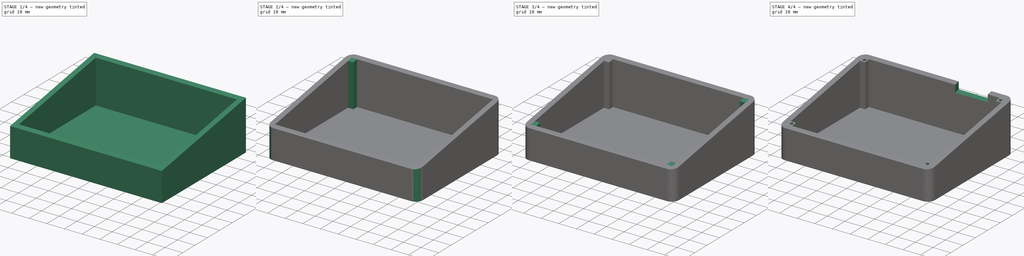
[diagram: build sequence overview — one tinted view per stage of 4, left to right]
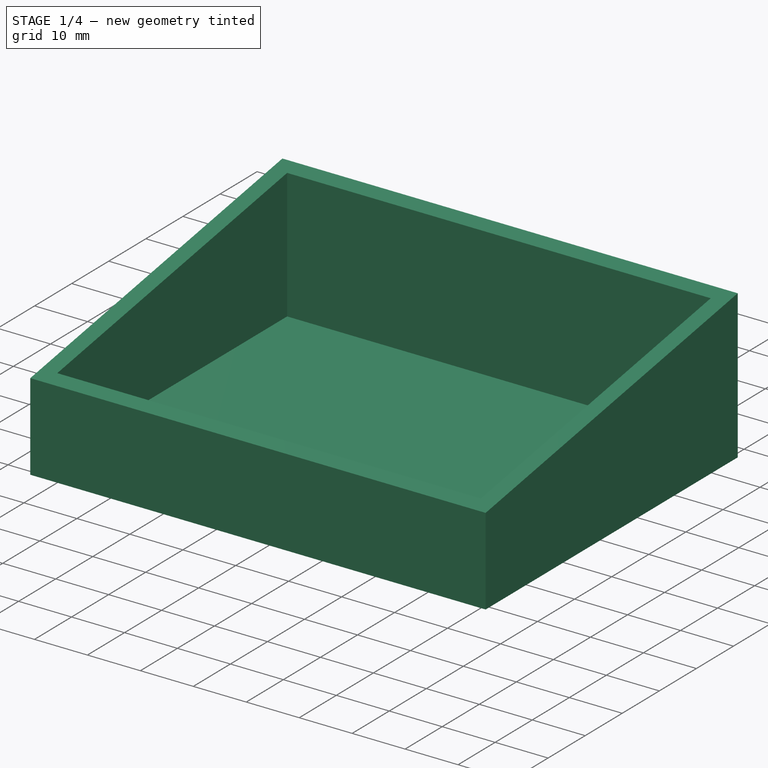
[diagram: stage 1 of 4 — iso view after this stage's code; geometry added in this stage tinted green]
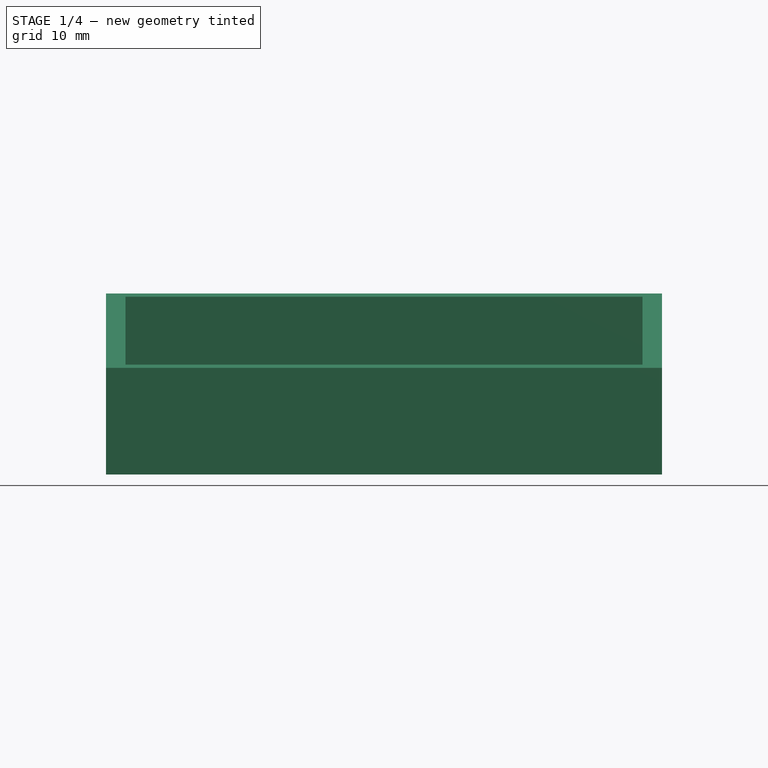
[diagram: stage 1 of 4 — front view after this stage's code; geometry added in this stage tinted green]
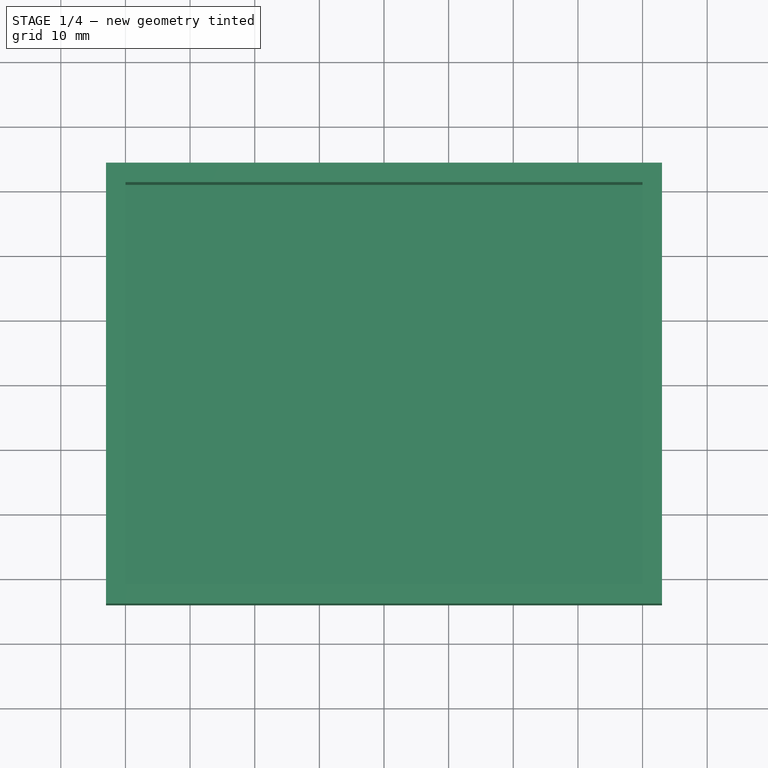
[diagram: stage 1 of 4 — top view after this stage's code; geometry added in this stage tinted green]
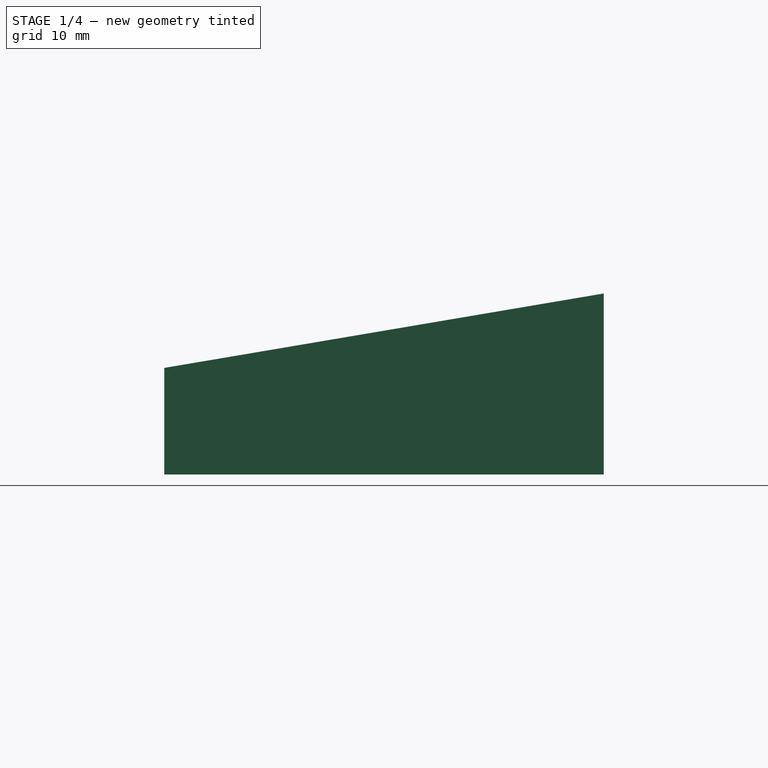
[diagram: stage 1 of 4 — right view after this stage's code; geometry added in this stage tinted green]
FCSTD DOCUMENT  (FreeCAD 0.19R)
Label: makro-buddy-1.0
License: All rights reserved
LicenseURL: http://en.wikipedia.org/wiki/All_rights_reserved
objects: Sketcher::SketchObject×8, PartDesign::Pad×5, PartDesign::Pocket×2, PartDesign::Thickness×1, PartDesign::Fillet×1, PartDesign::Hole×1, PartDesign::Body×1
note: 29 computed .brp shape members not serialized (recipe doc carries the construction recipe); baked Part::Feature solids carry a one-line shape summary decoded from their .brp

FEATURE [Sketcher::SketchObject] Sketch  label="base"
  FullyConstrained = true
  MapMode = 5
  Placement = pos=(0,0,0) rot=(0.57735,0.57735,0.57735;2.0944rad)
  Support = -> [YZ_Plane]
  sketch-geometry (4):
    g0: LineSegment StartX=-31 StartY=-7 StartZ=0 EndX=-31 EndY=7 EndZ=0
    g1: LineSegment StartX=-31 StartY=7 StartZ=0 EndX=31 EndY=17.5 EndZ=0
    g2: LineSegment StartX=31 StartY=17.5 StartZ=0 EndX=31 EndY=-7 EndZ=0
    g3: LineSegment StartX=31 StartY=-7 StartZ=0 EndX=-31 EndY=-7 EndZ=0
  constraints (11):
    c: Coincident(g0,g1)
    c: Coincident(g1,g2)
    c: Vertical(g2)
    c: Coincident(g2,g3)
    c: Coincident(g3,g0)
    c: Horizontal(g3)
    c: DistanceY(g0,g0) = 14
    c: Vertical(g0)
    c: DistanceY(g2,g2) = 24.5
    c: DistanceX(g3,g3) = 62
    c: Symmetric(g0,g2,g-1)
FEATURE [PartDesign::Pad] Pad
  Direction = (1,1,1)
  Length = 80
  Length2 = 100
  Placement = pos=(0,0,0) rot=(0.57735,0.57735,0.57735;2.0944rad)
  Profile = -> Sketch
  Type = 0
FEATURE [PartDesign::Thickness] Thickness
  Base = -> Pad [Face2]
  BaseFeature = -> Pad
  Intersection = false
  Join = 1
  Mode = 0
  SupportTransform = false
  Value = 3
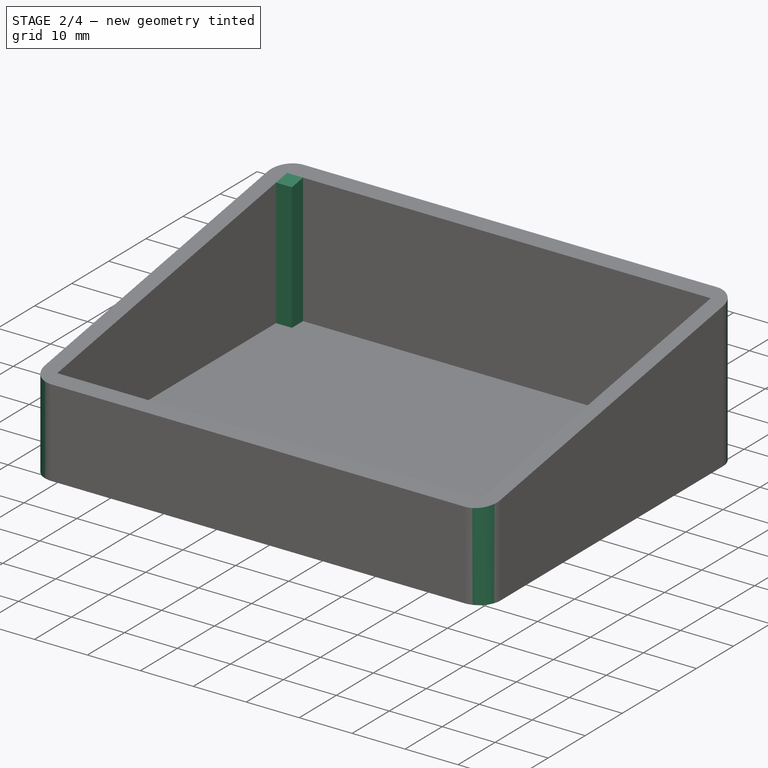
[diagram: stage 2 of 4 — iso view after this stage's code; geometry added in this stage tinted green]
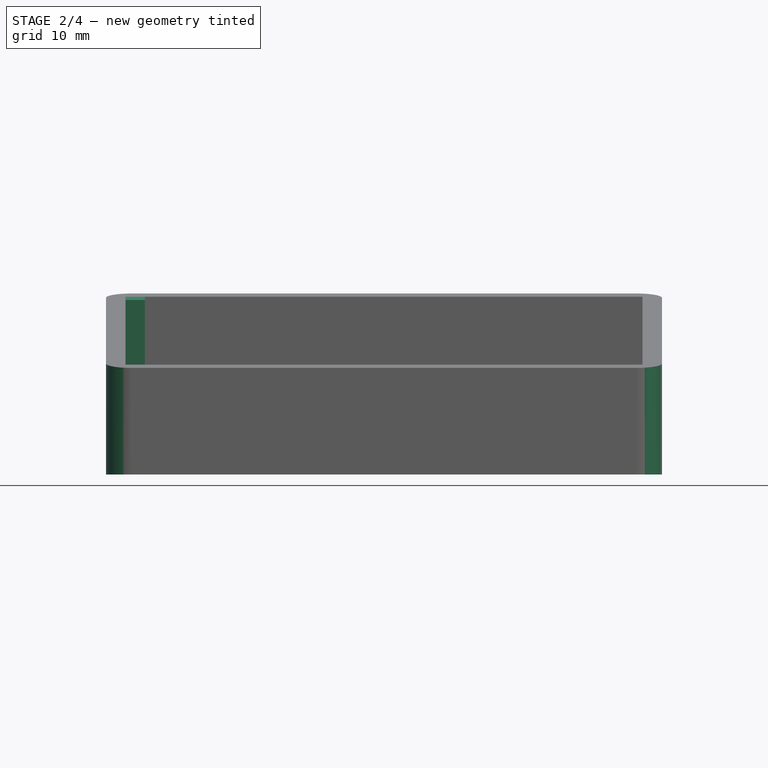
[diagram: stage 2 of 4 — front view after this stage's code; geometry added in this stage tinted green]
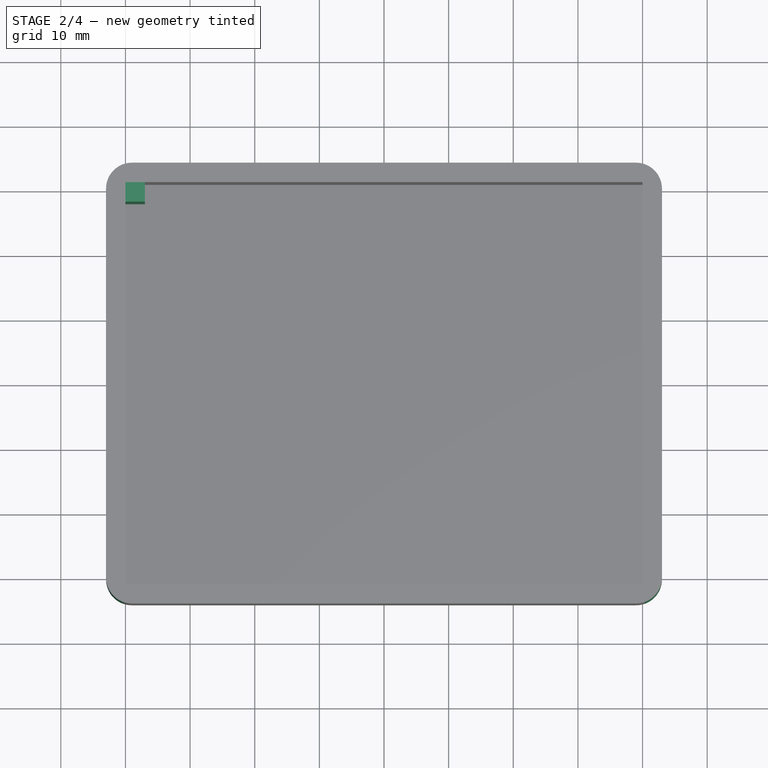
[diagram: stage 2 of 4 — top view after this stage's code; geometry added in this stage tinted green]
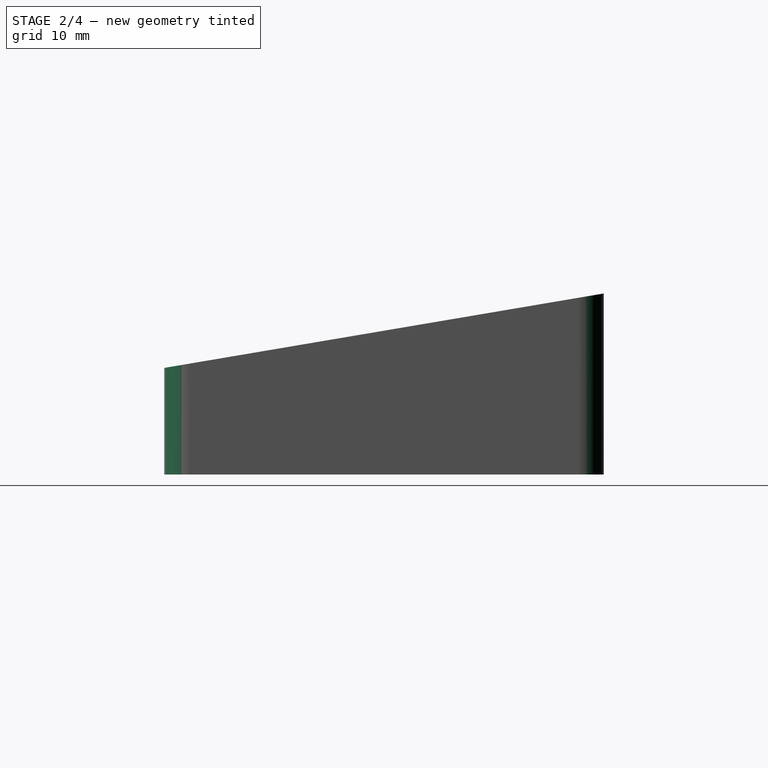
[diagram: stage 2 of 4 — right view after this stage's code; geometry added in this stage tinted green]
FEATURE [PartDesign::Fillet] Fillet
  Base = -> Thickness [Edge22,Edge18,Edge19,Edge21]
  BaseFeature = -> Thickness
  Radius = 4
  SupportTransform = false
FEATURE [Sketcher::SketchObject] Sketch001  label="feet"
  ExternalGeometry = -> [Fillet]
  FullyConstrained = true
  MapMode = 5
  Placement = pos=(2.8e-15,-4.4e-15,-10) rot=(1,0,0;3.14159rad)
  Support = -> [Fillet]
  sketch-geometry (4):
    g0: Circle CenterX=14 CenterY=-20 CenterZ=0 NormalX=0 NormalY=0 NormalZ=1 AngleXU=0 Radius=7.6
    g1: Circle CenterX=14 CenterY=20 CenterZ=0 NormalX=0 NormalY=0 NormalZ=1 AngleXU=0 Radius=7.6
    g2: Circle CenterX=66 CenterY=20 CenterZ=0 NormalX=0 NormalY=0 NormalZ=1 AngleXU=0 Radius=7.6
    g3: Circle CenterX=66 CenterY=-20 CenterZ=0 NormalX=0 NormalY=0 NormalZ=1 AngleXU=0 Radius=7.6
  constraints (10):
    c: Diameter(g0) = 15.2
    c: Diameter(g1) = 15.2
    c: Symmetric(g0,g1,g-1)
    c: DistanceY(g0,g-1) = 20
    c: Diameter(g2) = 15.2
    c: Diameter(g3) = 15.2
    c: Symmetric(g2,g3,g-1)
    c: DistanceY(g3,g-1) = 20
    c: DistanceX(g2,g-3) = 17
    c: DistanceX(g-4,g1) = 17
FEATURE [PartDesign::Pocket] Pocket
  BaseFeature = -> Fillet
  Length = 1
  Length2 = 100
  Profile = -> Sketch001
  Type = 0
FEATURE [Sketcher::SketchObject] Sketch002
  ExternalGeometry = -> [Pocket]
  FullyConstrained = true
  MapMode = 5
  Placement = pos=(0,0,0) rot=(0.57735,0.57735,0.57735;2.0944rad)
  Support = -> [Pocket]
  sketch-geometry (4):
    g0: LineSegment StartX=28 StartY=-7 StartZ=0 EndX=31 EndY=-7 EndZ=0
    g1: LineSegment StartX=31 StartY=-7 StartZ=0 EndX=31 EndY=17.5 EndZ=0
    g2: LineSegment StartX=31 StartY=17.5 StartZ=0 EndX=28 EndY=16.9919 EndZ=0
    g3: LineSegment StartX=28 StartY=16.9919 StartZ=0 EndX=28 EndY=-7 EndZ=0
  constraints (11):
    c: Horizontal(g0)
    c: Coincident(g0,g1)
    c: Coincident(g1,g2)
    c: Coincident(g2,g3)
    c: Coincident(g3,g0)
    c: Vertical(g3)
    c: Vertical(g1)
    c: Coincident(g1,g-3)
    c: DistanceX(g0,g0) = 3
    c: DistanceY(g-4,g0) = 0
    c: Parallel(g2,g-3)
FEATURE [PartDesign::Pad] Pad001
  BaseFeature = -> Pocket
  Direction = (1,1,1)
  Length = 3
  Length2 = 100
  Profile = -> Sketch002
  Type = 0
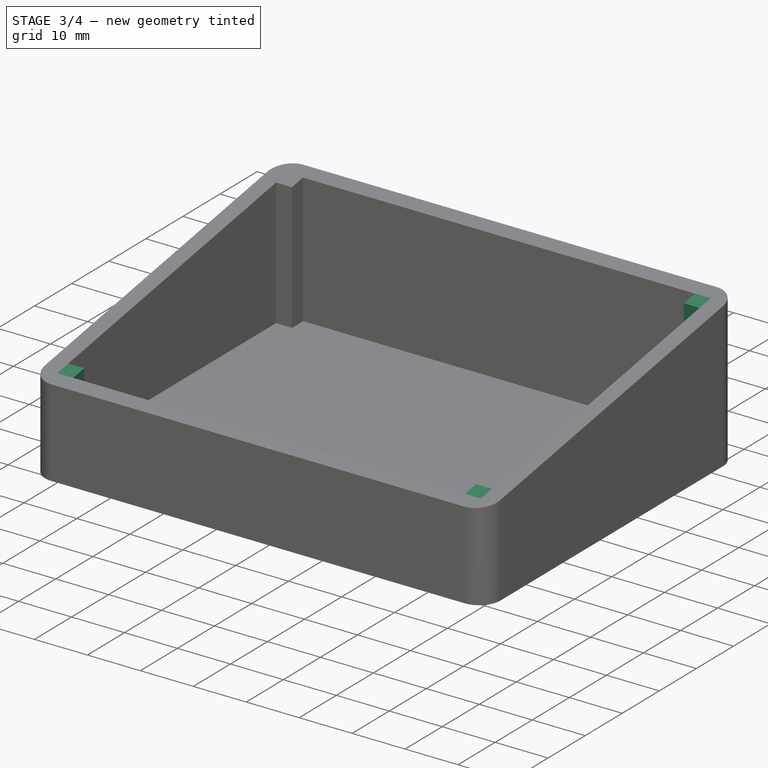
[diagram: stage 3 of 4 — iso view after this stage's code; geometry added in this stage tinted green]
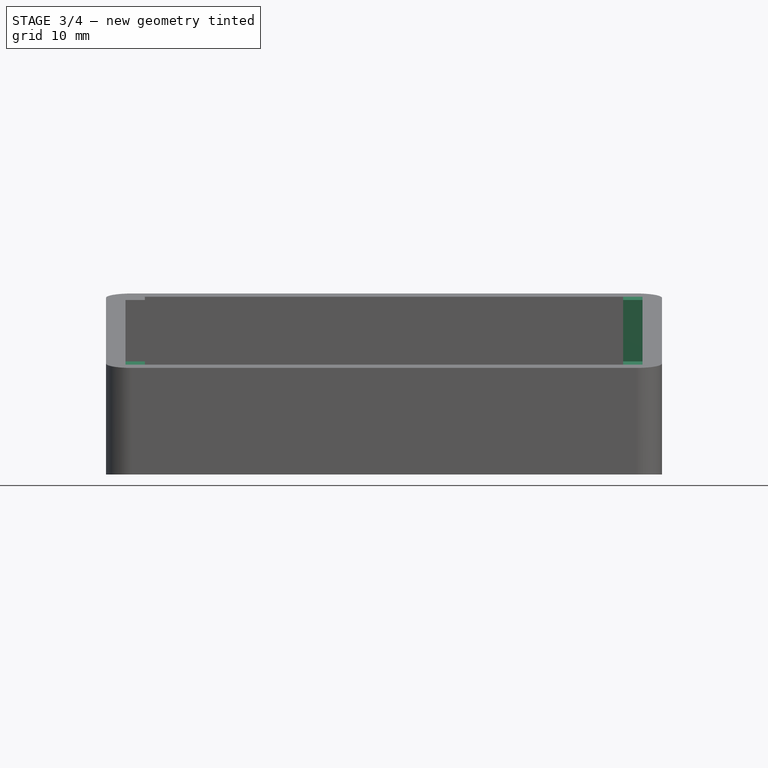
[diagram: stage 3 of 4 — front view after this stage's code; geometry added in this stage tinted green]
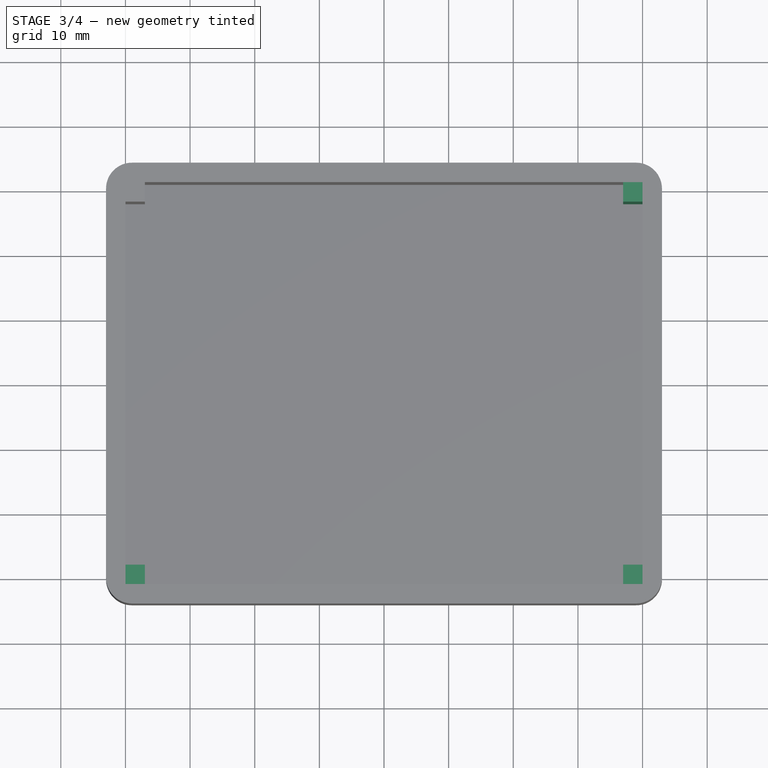
[diagram: stage 3 of 4 — top view after this stage's code; geometry added in this stage tinted green]
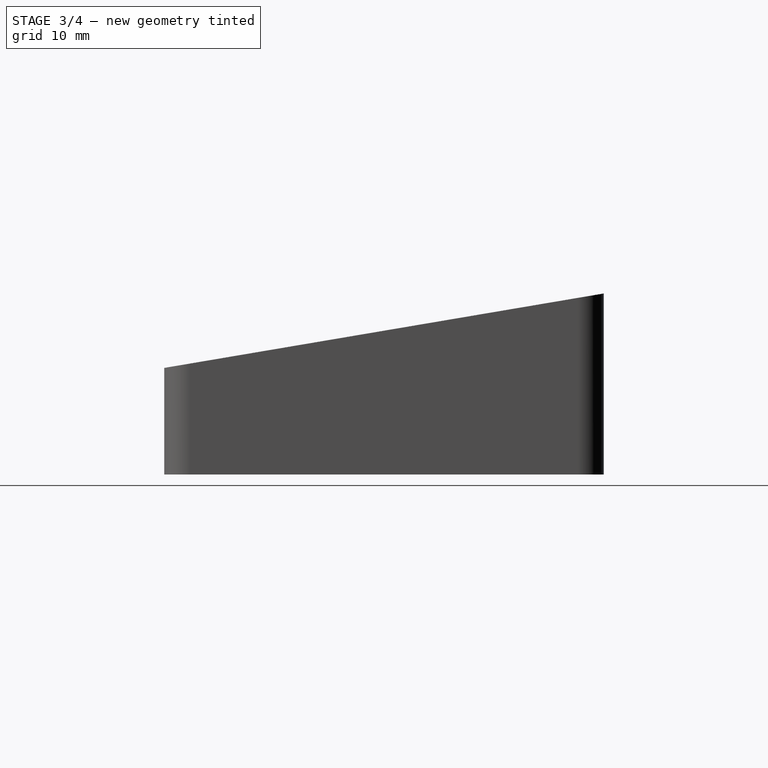
[diagram: stage 3 of 4 — right view after this stage's code; geometry added in this stage tinted green]
FEATURE [Sketcher::SketchObject] Sketch003
  ExternalGeometry = -> [Pad001]
  FullyConstrained = true
  MapMode = 5
  Placement = pos=(80,-1.76e-14,1.76e-14) rot=(-0.57735,0.57735,0.57735;4.18879rad)
  Support = -> [Pad001]
  sketch-geometry (4):
    g0: LineSegment StartX=-31 StartY=-7 StartZ=0 EndX=-31 EndY=17.5 EndZ=0
    g1: LineSegment StartX=-31 StartY=17.5 StartZ=0 EndX=-28 EndY=16.9919 EndZ=0
    g2: LineSegment StartX=-28 StartY=16.9919 StartZ=0 EndX=-28 EndY=-7 EndZ=0
    g3: LineSegment StartX=-28 StartY=-7 StartZ=0 EndX=-31 EndY=-7 EndZ=0
  constraints (11):
    c: Vertical(g0)
    c: Coincident(g0,g1)
    c: Coincident(g1,g2)
    c: Vertical(g2)
    c: Coincident(g2,g3)
    c: Coincident(g3,g0)
    c: DistanceX(g3,g3) = 3
    c: Coincident(g0,g-3)
    c: DistanceY(g-4,g2) = 0
    c: Horizontal(g3)
    c: Parallel(g1,g-3)
FEATURE [PartDesign::Pad] Pad002
  BaseFeature = -> Pad001
  Direction = (1,1,1)
  Length = 3
  Length2 = 100
  Profile = -> Sketch003
  Type = 0
FEATURE [Sketcher::SketchObject] Sketch004
  ExternalGeometry = -> [Pad002]
  FullyConstrained = true
  MapMode = 5
  Placement = pos=(80,-1.76e-14,1.76e-14) rot=(-0.57735,0.57735,0.57735;4.18879rad)
  Support = -> [Pad002]
  sketch-geometry (4):
    g0: LineSegment StartX=28 StartY=-7 StartZ=0 EndX=28 EndY=7.50806 EndZ=0
    g1: LineSegment StartX=28 StartY=7.50806 StartZ=0 EndX=31 EndY=7 EndZ=0
    g2: LineSegment StartX=31 StartY=7 StartZ=0 EndX=31 EndY=-7 EndZ=0
    g3: LineSegment StartX=31 StartY=-7 StartZ=0 EndX=28 EndY=-7 EndZ=0
  constraints (11):
    c: Coincident(g0,g1)
    c: Coincident(g1,g2)
    c: Coincident(g2,g3)
    c: Coincident(g3,g0)
    c: Coincident(g1,g-3)
    c: Horizontal(g3)
    c: DistanceY(g-4,g2) = 0
    c: DistanceX(g2,g-4) = 0
    c: Parallel(g1,g-3)
    c: DistanceX(g3,g3) = 3
    c: Vertical(g0)
FEATURE [PartDesign::Pad] Pad003
  BaseFeature = -> Pad002
  Direction = (1,1,1)
  Length = 3
  Length2 = 100
  Profile = -> Sketch004
  Type = 0
FEATURE [Sketcher::SketchObject] Sketch005
  ExternalGeometry = -> [Pad003]
  FullyConstrained = true
  MapMode = 5
  Placement = pos=(0,0,0) rot=(0.57735,0.57735,0.57735;2.0944rad)
  Support = -> [Pad003]
  sketch-geometry (4):
    g0: LineSegment StartX=-31 StartY=-7 StartZ=0 EndX=-31 EndY=7 EndZ=0
    g1: LineSegment StartX=-31 StartY=7 StartZ=0 EndX=-28 EndY=7.50806 EndZ=0
    g2: LineSegment StartX=-28 StartY=7.50806 StartZ=0 EndX=-28 EndY=-7 EndZ=0
    g3: LineSegment StartX=-28 StartY=-7 StartZ=0 EndX=-31 EndY=-7 EndZ=0
  constraints (11):
    c: Coincident(g0,g1)
    c: Coincident(g1,g2)
    c: Coincident(g2,g3)
    c: Coincident(g3,g0)
    c: Horizontal(g3)
    c: Vertical(g2)
    c: Vertical(g0)
    c: Coincident(g0,g-3)
    c: DistanceY(g-4,g0) = 0
    c: Parallel(g1,g-3)
    c: DistanceX(g3,g3) = 3
FEATURE [PartDesign::Pad] Pad004
  BaseFeature = -> Pad003
  Direction = (1,1,1)
  Length = 3
  Length2 = 100
  Profile = -> Sketch005
  Type = 0
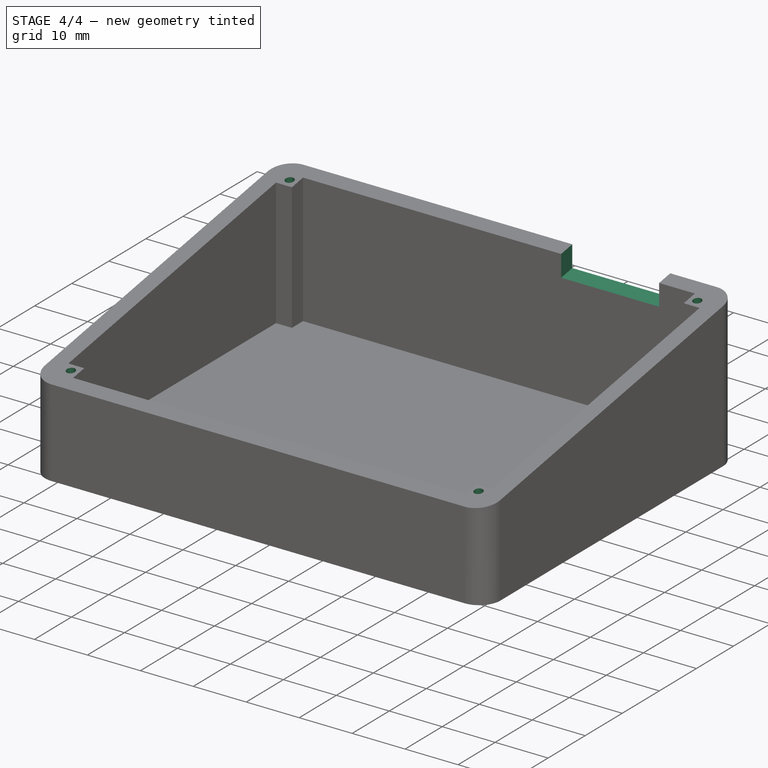
[diagram: stage 4 of 4 — iso view after this stage's code; geometry added in this stage tinted green]
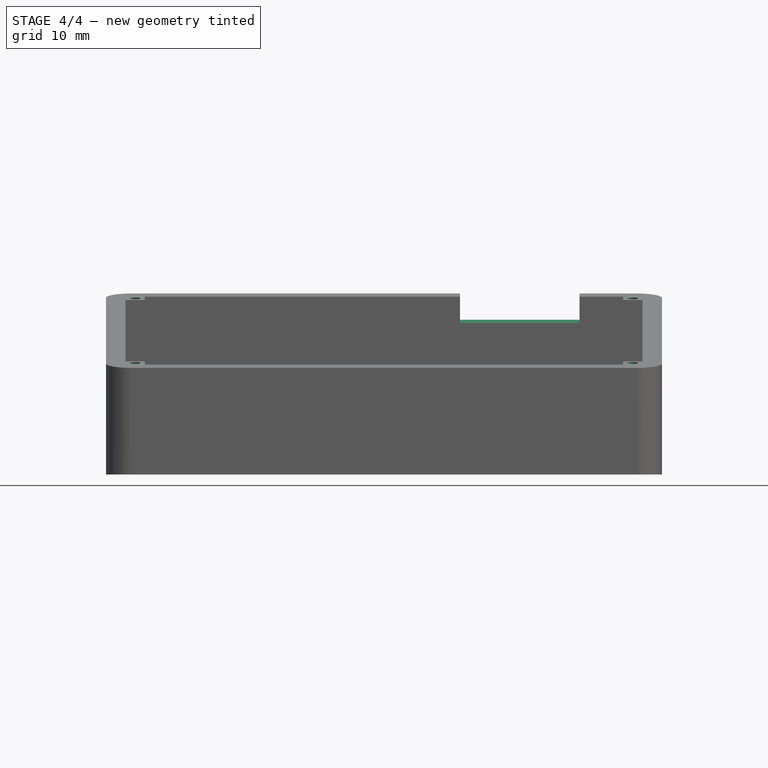
[diagram: stage 4 of 4 — front view after this stage's code; geometry added in this stage tinted green]
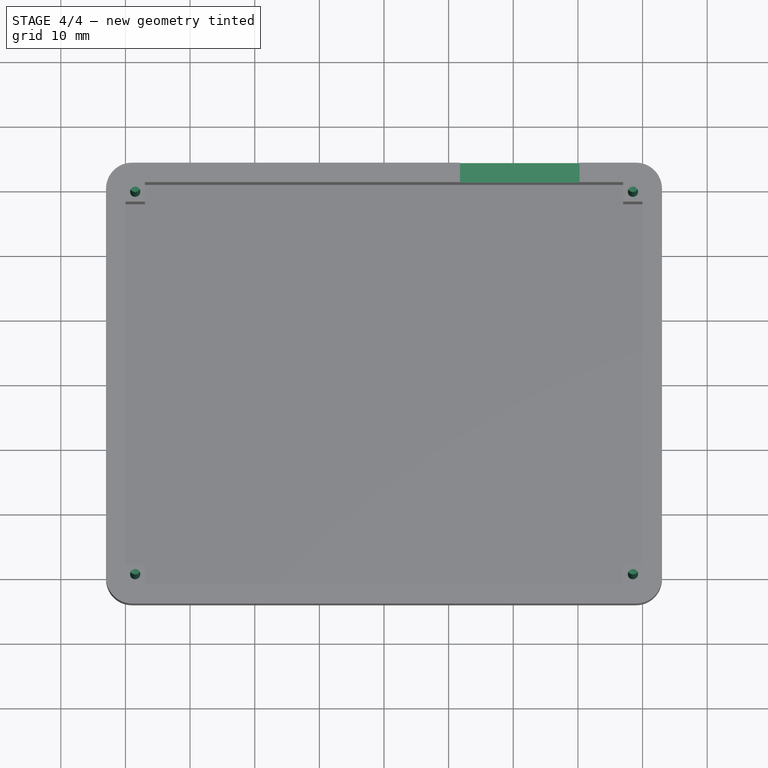
[diagram: stage 4 of 4 — top view after this stage's code; geometry added in this stage tinted green]
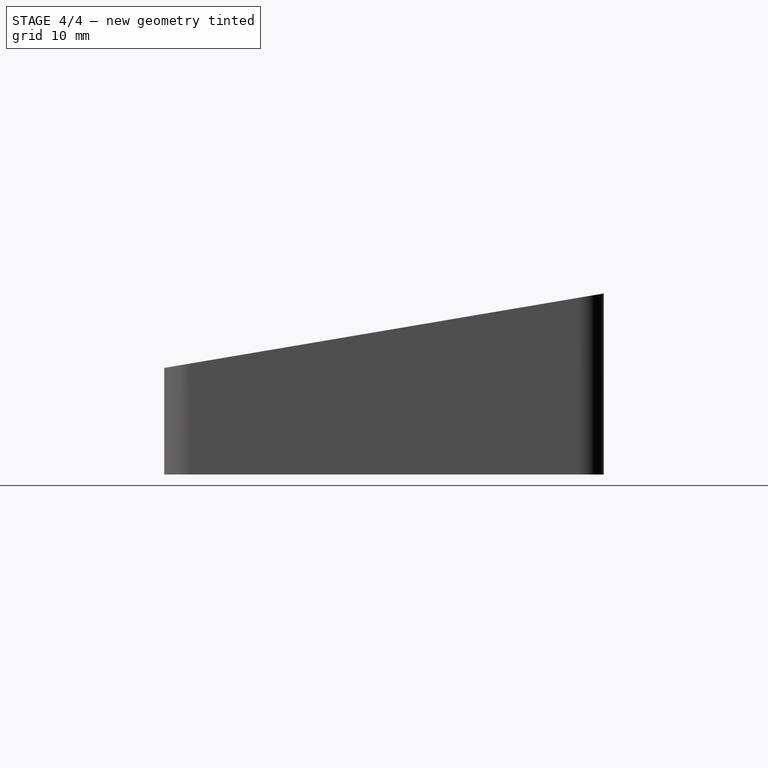
[diagram: stage 4 of 4 — right view after this stage's code; geometry added in this stage tinted green]
FEATURE [Sketcher::SketchObject] Sketch006
  ExternalGeometry = -> [Pad004]
  FullyConstrained = true
  MapMode = 5
  Placement = pos=(-3.1e-15,-2.01675,11.9085) rot=(1,0,0;0.167763rad)
  Support = -> [Pad004]
  sketch-geometry (4):
    g0: Circle CenterX=1.5 CenterY=31.9869 CenterZ=0 NormalX=0 NormalY=0 NormalZ=1 AngleXU=0 Radius=1
    g1: Circle CenterX=78.5 CenterY=31.9869 CenterZ=0 NormalX=0 NormalY=0 NormalZ=1 AngleXU=0 Radius=1
    g2: Circle CenterX=78.5 CenterY=-27.8532 CenterZ=0 NormalX=0 NormalY=0 NormalZ=1 AngleXU=0 Radius=1
    g3: Circle CenterX=1.5 CenterY=-27.8532 CenterZ=0 NormalX=0 NormalY=0 NormalZ=1 AngleXU=0 Radius=1
  constraints (12):
    c: Diameter(g0) = 2
    c: DistanceY(g0,g-4) = 1.5
    c: DistanceX(g-4,g0) = 1.5
    c: Diameter(g1) = 2
    c: DistanceX(g1,g-5) = 1.5
    c: DistanceY(g1,g-5) = 1.5
    c: Diameter(g2) = 2
    c: DistanceX(g-6,g2) = 1.5
    c: DistanceY(g2,g-6) = 1.5
    c: Diameter(g3) = 2
    c: DistanceY(g3,g-7) = 1.5
    c: DistanceX(g-7,g3) = 1.5
FEATURE [PartDesign::Hole] Hole
  BaseFeature = -> Pad004
  Depth = 5
  DepthType = 0
  Diameter = 1.6
  DrillForDepth = false
  DrillPoint = 1
  DrillPointAngle = 118
  HoleCutCountersinkAngle = 90
  HoleCutCustomValues = false
  HoleCutDepth = 0
  HoleCutDiameter = 6.1
  HoleCutType = 0
  ModelActualThread = false
  Profile = -> Sketch006
  Tapered = false
  TaperedAngle = 90
  ThreadAngle = 60
  ThreadClass = 0
  ThreadCutOffInner = 0.0433013
  ThreadCutOffOuter = 0.0866025
  ThreadDirection = 0
  ThreadFit = 0
  ThreadPitch = 0.4
  ThreadSize = 6
  ThreadType = 1
  Threaded = true
FEATURE [Sketcher::SketchObject] Sketch007
  ExternalGeometry = -> [Hole]
  FullyConstrained = true
  MapMode = 5
  Placement = pos=(-4.2e-15,-2.01675,11.9085) rot=(1,0,0;0.167763rad)
  Support = -> [Hole]
  sketch-geometry (4):
    g0: LineSegment StartX=51.75 StartY=37.4869 StartZ=0 EndX=70.25 EndY=37.4869 EndZ=0
    g1: LineSegment StartX=70.25 StartY=37.4869 StartZ=0 EndX=70.25 EndY=32.4869 EndZ=0
    g2: LineSegment StartX=70.25 StartY=32.4869 StartZ=0 EndX=51.75 EndY=32.4869 EndZ=0
    g3: LineSegment StartX=51.75 StartY=32.4869 StartZ=0 EndX=51.75 EndY=37.4869 EndZ=0
  constraints (12):
    c: Coincident(g0,g1)
    c: Coincident(g1,g2)
    c: Coincident(g2,g3)
    c: Coincident(g3,g0)
    c: Horizontal(g0)
    c: Horizontal(g2)
    c: Vertical(g1)
    c: Vertical(g3)
    c: DistanceX(g2,g2) = 18.5
    c: DistanceY(g1,g1) = 5
    c: DistanceX(g1,g-3) = 12.75
    c: DistanceY(g-4,g1) = -1
FEATURE [PartDesign::Pocket] Pocket001
  BaseFeature = -> Hole
  Length = 4
  Length2 = 100
  Profile = -> Sketch007
  Type = 0
FEATURE [PartDesign::Body] Body
  Group = -> [Sketch,Pad,Thickness,Fillet,Sketch001,Pocket,Sketch002,Pad001,Sketch003,Pad002,Sketch004,Pad003,Sketch005,Pad004,Sketch006,Hole,Sketch007,Pocket001]
  Origin = -> Origin
  Tip = -> Pocket001
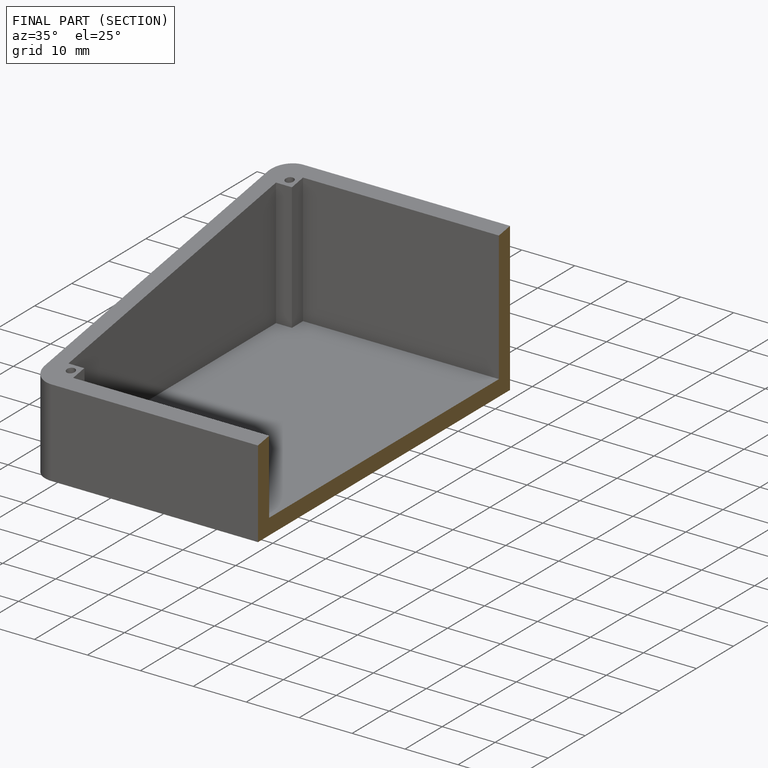
[diagram: finished part — half-section view (interior)]
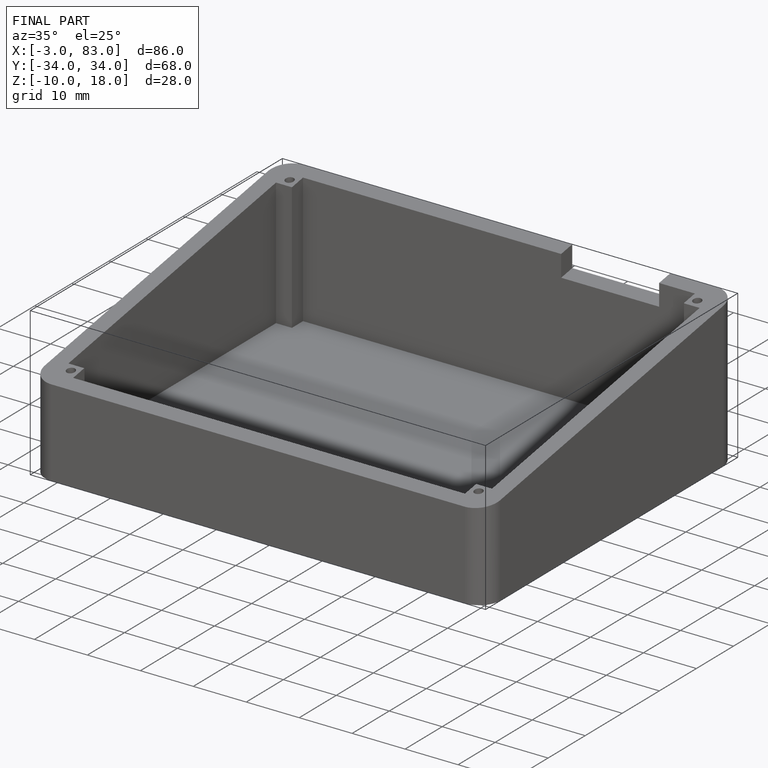
[diagram: finished part — iso view with bounding-box wireframe]
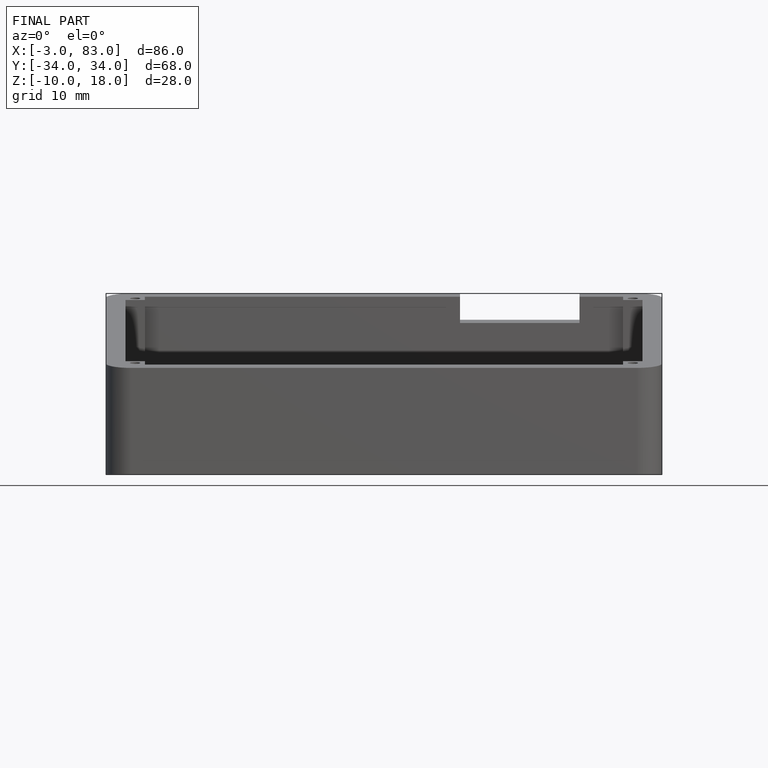
[diagram: finished part — front view with bounding-box wireframe]
